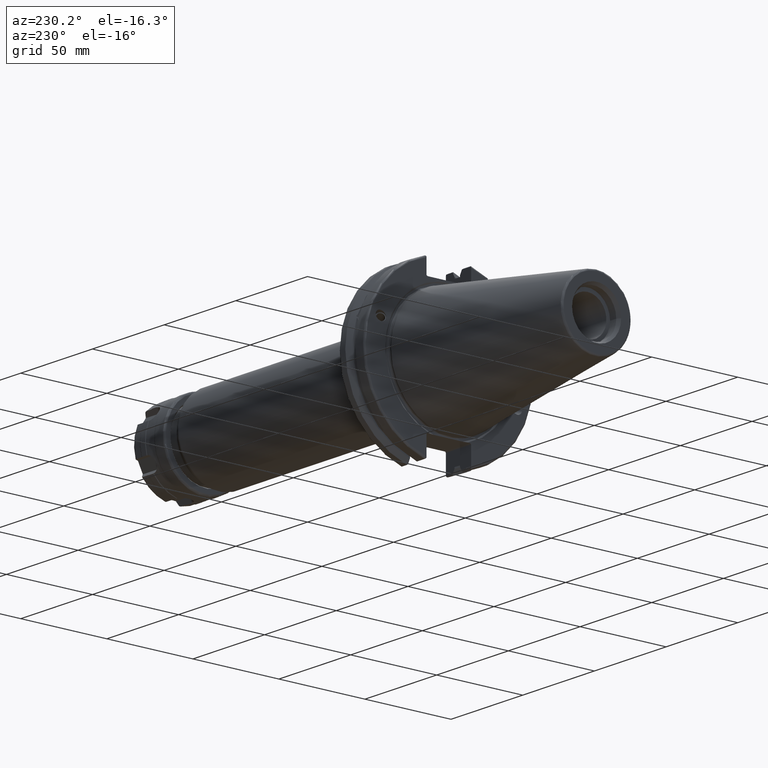
[diagram: clean part render]
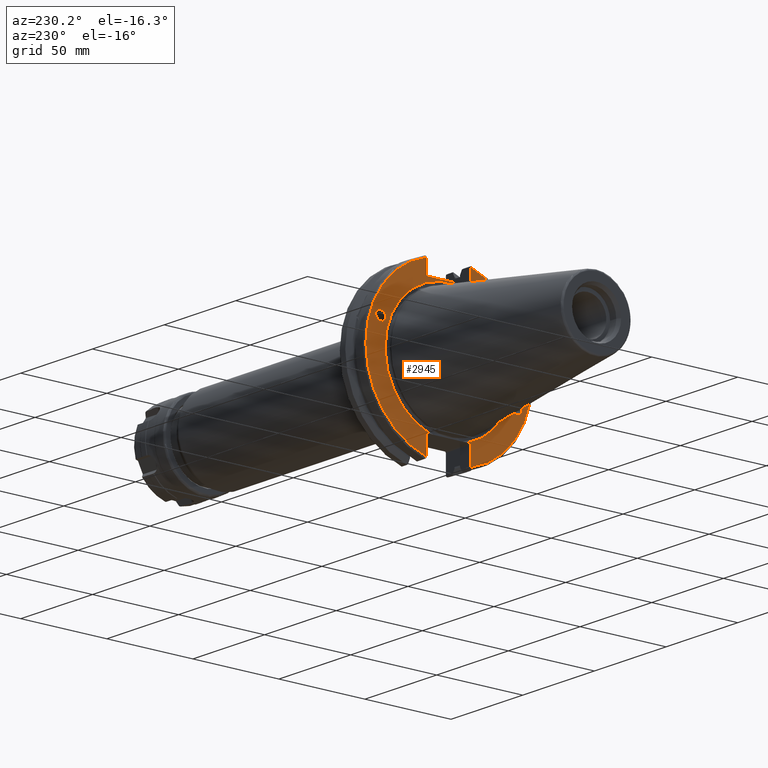
[diagram: same view with one face highlighted and labeled with its STEP entity id]
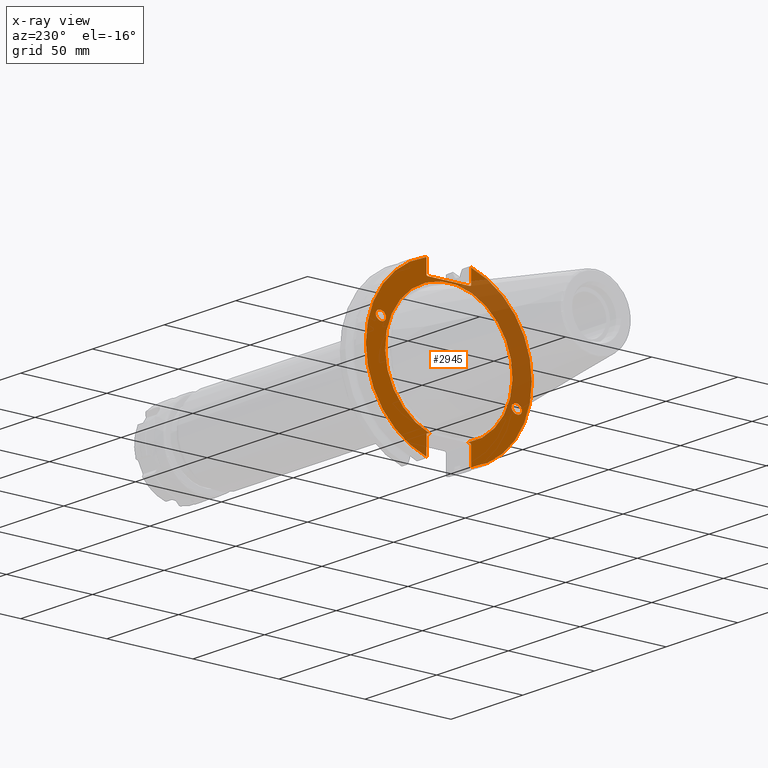
[diagram: x-ray of the same camera — body ghosted, the highlighted face saturated]
A machine part, auxiliary view. The second image highlights one B-rep face of the part: STEP entity #2945.
The next image is the same camera in x-ray: the body ghosted, the highlighted face saturated — about 31% of this face is hidden behind the body in this view.
In plain terms, the highlighted planar face has unit normal (-1, 0, 0).
Its self-contained STEP definition (entity closure, byte-faithful):
#76=ELLIPSE('',#3190,3.05193647190365,2.50000000000001);
#77=ELLIPSE('',#3225,3.05193647190365,2.50000000000001);
#245=LINE('',#5021,#415);
#248=LINE('',#5071,#418);
#256=LINE('',#5107,#426);
#260=LINE('',#5175,#430);
#261=LINE('',#5177,#431);
#262=LINE('',#5179,#432);
#263=LINE('',#5180,#433);
#264=LINE('',#5182,#434);
#265=LINE('',#5184,#435);
#266=LINE('',#5188,#436);
#267=LINE('',#5189,#437);
#415=VECTOR('',#3736,10.);
#418=VECTOR('',#3745,10.);
#426=VECTOR('',#3755,10.);
#430=VECTOR('',#3781,10.);
#431=VECTOR('',#3782,10.);
#432=VECTOR('',#3783,10.);
#433=VECTOR('',#3784,10.);
#434=VECTOR('',#3785,10.);
#435=VECTOR('',#3786,10.);
#436=VECTOR('',#3789,10.);
#437=VECTOR('',#3790,10.);
#587=FACE_BOUND('',#898,.T.);
#588=FACE_BOUND('',#899,.T.);
#617=PLANE('',#3248);
#716=FACE_OUTER_BOUND('',#897,.T.);
#897=EDGE_LOOP('',(#2264,#2265,#2266,#2267,#2268,#2269,#2270,#2271,#2272,
#2273,#2274,#2275,#2276,#2277));
#898=EDGE_LOOP('',(#2278));
#899=EDGE_LOOP('',(#2279));
#1087=CIRCLE('',#3240,48.2125);
#1090=CIRCLE('',#3247,48.2125);
#1091=CIRCLE('',#3249,37.);
#1253=VERTEX_POINT('',#4700);
#1292=VERTEX_POINT('',#4964);
#1301=VERTEX_POINT('',#5018);
#1302=VERTEX_POINT('',#5020);
#1308=VERTEX_POINT('',#5068);
#1309=VERTEX_POINT('',#5070);
#1317=VERTEX_POINT('',#5099);
#1318=VERTEX_POINT('',#5106);
#1326=VERTEX_POINT('',#5165);
#1327=VERTEX_POINT('',#5174);
#1328=VERTEX_POINT('',#5176);
#1329=VERTEX_POINT('',#5178);
#1330=VERTEX_POINT('',#5181);
#1331=VERTEX_POINT('',#5183);
#1332=VERTEX_POINT('',#5185);
#1333=VERTEX_POINT('',#5187);
#1577=EDGE_CURVE('',#1253,#1253,#76,.T.);
#1630=EDGE_CURVE('',#1292,#1292,#77,.T.);
#1644=EDGE_CURVE('',#1302,#1301,#245,.T.);
#1654=EDGE_CURVE('',#1309,#1308,#248,.T.);
#1666=EDGE_CURVE('',#1318,#1317,#256,.T.);
#1671=EDGE_CURVE('',#1309,#1317,#1087,.T.);
#1680=EDGE_CURVE('',#1302,#1326,#1090,.T.);
#1682=EDGE_CURVE('',#1327,#1308,#260,.T.);
#1683=EDGE_CURVE('',#1327,#1328,#261,.T.);
#1684=EDGE_CURVE('',#1329,#1328,#262,.T.);
#1685=EDGE_CURVE('',#1329,#1326,#263,.T.);
#1686=EDGE_CURVE('',#1330,#1301,#264,.T.);
#1687=EDGE_CURVE('',#1330,#1331,#265,.T.);
#1688=EDGE_CURVE('',#1331,#1332,#1091,.T.);
#1689=EDGE_CURVE('',#1332,#1333,#266,.T.);
#1690=EDGE_CURVE('',#1318,#1333,#267,.T.);
#2264=ORIENTED_EDGE('',*,*,#1671,.F.);
#2265=ORIENTED_EDGE('',*,*,#1654,.T.);
#2266=ORIENTED_EDGE('',*,*,#1682,.F.);
#2267=ORIENTED_EDGE('',*,*,#1683,.T.);
#2268=ORIENTED_EDGE('',*,*,#1684,.F.);
#2269=ORIENTED_EDGE('',*,*,#1685,.T.);
#2270=ORIENTED_EDGE('',*,*,#1680,.F.);
#2271=ORIENTED_EDGE('',*,*,#1644,.T.);
#2272=ORIENTED_EDGE('',*,*,#1686,.F.);
#2273=ORIENTED_EDGE('',*,*,#1687,.T.);
#2274=ORIENTED_EDGE('',*,*,#1688,.T.);
#2275=ORIENTED_EDGE('',*,*,#1689,.T.);
#2276=ORIENTED_EDGE('',*,*,#1690,.F.);
#2277=ORIENTED_EDGE('',*,*,#1666,.T.);
#2278=ORIENTED_EDGE('',*,*,#1577,.T.);
#2279=ORIENTED_EDGE('',*,*,#1630,.T.);
#2945=ADVANCED_FACE('',(#716,#587,#588),#617,.T.);
#3190=AXIS2_PLACEMENT_3D('',#4702,#3627,#3628);
#3225=AXIS2_PLACEMENT_3D('',#4966,#3713,#3714);
#3240=AXIS2_PLACEMENT_3D('',#5129,#3761,#3762);
#3247=AXIS2_PLACEMENT_3D('',#5166,#3777,#3778);
#3248=AXIS2_PLACEMENT_3D('',#5173,#3779,#3780);
#3249=AXIS2_PLACEMENT_3D('',#5186,#3787,#3788);
#3627=DIRECTION('center_axis',(1.,0.,0.));
#3628=DIRECTION('ref_axis',(0.,-0.939692620785909,-0.342020143325667));
#3713=DIRECTION('center_axis',(1.,0.,0.));
#3714=DIRECTION('ref_axis',(0.,0.939692620785909,0.342020143325667));
#3736=DIRECTION('',(0.,0.,1.));
#3745=DIRECTION('',(0.,0.,-1.));
#3755=DIRECTION('',(0.,0.,-1.));
#3761=DIRECTION('center_axis',(1.,0.,0.));
#3762=DIRECTION('ref_axis',(0.,-1.,1.60812264967664E-16));
#3777=DIRECTION('center_axis',(1.,0.,0.));
#3778=DIRECTION('ref_axis',(0.,1.,-6.12323399573677E-17));
#3779=DIRECTION('center_axis',(-1.,0.,0.));
#3780=DIRECTION('ref_axis',(0.,0.,1.));
#3781=DIRECTION('',(0.,-0.707106781186549,0.707106781186546));
#3782=DIRECTION('',(0.,1.,0.));
#3783=DIRECTION('',(0.,-0.707106781186549,-0.707106781186546));
#3784=DIRECTION('',(0.,0.,1.));
#3785=DIRECTION('',(0.,0.707106781186548,-0.707106781186548));
#3786=DIRECTION('',(0.,-1.,0.));
#3787=DIRECTION('center_axis',(1.,0.,0.));
#3788=DIRECTION('ref_axis',(0.,0.,-1.));
#3789=DIRECTION('',(0.,-1.,0.));
#3790=DIRECTION('',(0.,0.707106781186549,0.707106781186546));
#4700=CARTESIAN_POINT('',(1.5,-36.5992078912529,-13.3210222701368));
#4702=CARTESIAN_POINT('Origin',(1.5,-39.4670900730082,-14.3648460196781));
#4964=CARTESIAN_POINT('',(1.5,36.5992078912529,13.3210222701368));
#4966=CARTESIAN_POINT('Origin',(1.5,39.4670900730082,14.3648460196781));
#5018=CARTESIAN_POINT('',(1.5,12.95,-35.806));
#5020=CARTESIAN_POINT('',(1.5,12.95,-46.4407434937254));
#5021=CARTESIAN_POINT('',(1.5,12.95,-17.653));
#5068=CARTESIAN_POINT('',(1.5,-12.95,38.219));
#5070=CARTESIAN_POINT('',(1.5,-12.95,46.4407434937254));
#5071=CARTESIAN_POINT('',(1.5,-12.95,18.8595));
#5099=CARTESIAN_POINT('',(1.5,-12.95,-46.4407434937254));
#5106=CARTESIAN_POINT('',(1.5,-12.95,-35.806));
#5107=CARTESIAN_POINT('',(1.5,-12.95,-17.653));
#5129=CARTESIAN_POINT('Origin',(1.5,0.,0.));
#5165=CARTESIAN_POINT('',(1.5,12.95,46.4407434937254));
#5166=CARTESIAN_POINT('Origin',(1.5,0.,0.));
#5173=CARTESIAN_POINT('Origin',(1.5,49.2125,0.));
#5174=CARTESIAN_POINT('',(1.5,-12.45,37.719));
#5175=CARTESIAN_POINT('',(1.5,12.2703750000001,12.998625));
#5176=CARTESIAN_POINT('',(1.5,12.45,37.719));
#5177=CARTESIAN_POINT('',(1.5,24.60625,37.719));
#5178=CARTESIAN_POINT('',(1.5,12.95,38.219));
#5179=CARTESIAN_POINT('',(1.5,12.335875,37.604875));
#5180=CARTESIAN_POINT('',(1.5,12.95,18.8595));
#5181=CARTESIAN_POINT('',(1.5,12.45,-35.306));
#5182=CARTESIAN_POINT('',(1.5,12.939125,-35.795125));
#5183=CARTESIAN_POINT('',(1.49999999999999,11.0673557817575,-35.306));
#5184=CARTESIAN_POINT('',(1.5,24.60625,-35.306));
#5185=CARTESIAN_POINT('',(1.5,-11.0673557817575,-35.306));
#5186=CARTESIAN_POINT('Origin',(1.5,0.,0.));
#5187=CARTESIAN_POINT('',(1.5,-12.45,-35.306));
#5188=CARTESIAN_POINT('',(1.5,24.60625,-35.306));
#5189=CARTESIAN_POINT('',(1.5,11.6671250000001,-11.188875));